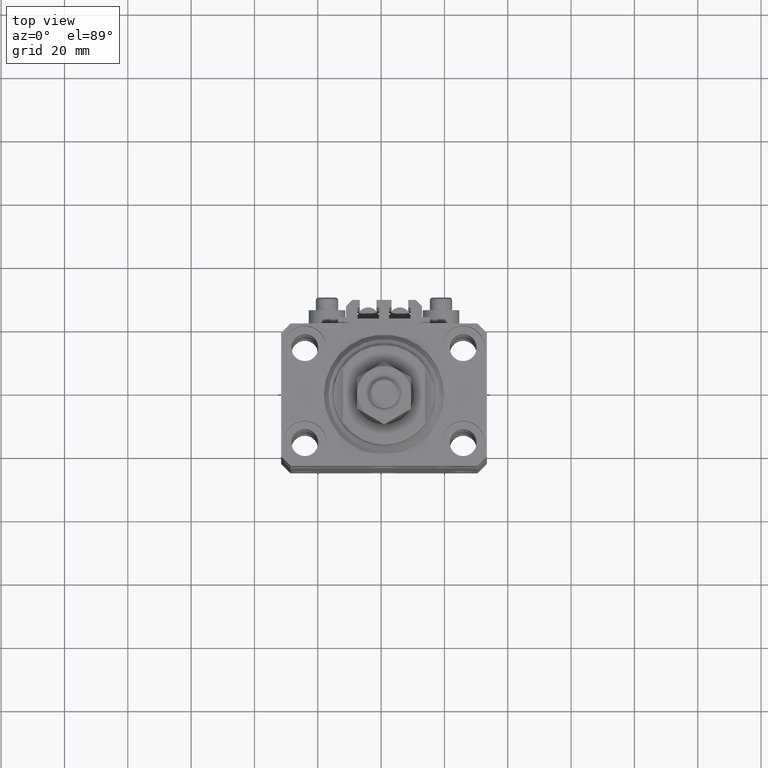
[diagram: clean part render]
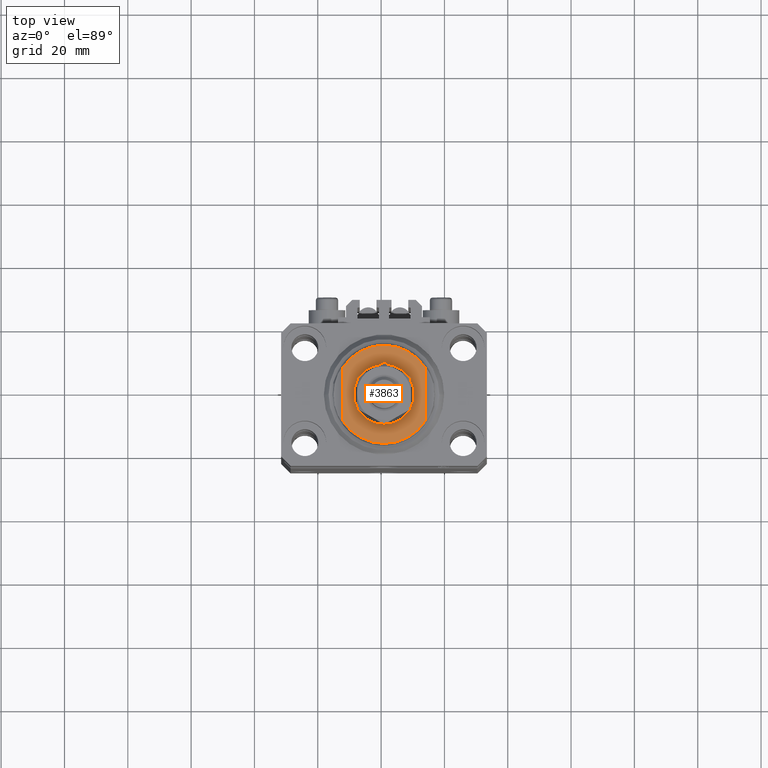
[diagram: same view with one face highlighted and labeled with its STEP entity id]
A machine part, top view. The second image highlights one B-rep face of the part: STEP entity #3863.
In plain terms, the highlighted planar face has unit normal (0, 0, 1).
Its self-contained STEP definition (entity closure, byte-faithful):
#1877 = EDGE_CURVE ( 'NONE', #36268, #11221, #43500, .T. ) ;
#2905 = CARTESIAN_POINT ( 'NONE',  ( 13.00000000000000000, -8.440971508067139695, -6.500000000000000000 ) ) ;
#3295 = DIRECTION ( 'NONE',  ( -0.000000000000000000, -1.000000000000000000, -0.000000000000000000 ) ) ;
#3733 = ORIENTED_EDGE ( 'NONE', *, *, #1877, .T. ) ;
#3863 = ADVANCED_FACE ( 'NONE', ( #9588, #25217 ), #40850, .T. ) ;
#4945 = ORIENTED_EDGE ( 'NONE', *, *, #44510, .T. ) ;
#5390 = EDGE_CURVE ( 'NONE', #30067, #33876, #36968, .T. ) ;
#5768 = CARTESIAN_POINT ( 'NONE',  ( 0.000000000000000000, 0.000000000000000000, -6.500000000000000000 ) ) ;
#5848 = DIRECTION ( 'NONE',  ( -0.000000000000000000, -0.000000000000000000, 1.000000000000000000 ) ) ;
#8107 = ORIENTED_EDGE ( 'NONE', *, *, #41847, .T. ) ;
#8336 = ORIENTED_EDGE ( 'NONE', *, *, #22093, .T. ) ;
#8950 = DIRECTION ( 'NONE',  ( 0.000000000000000000, 0.000000000000000000, -1.000000000000000000 ) ) ;
#9096 = CARTESIAN_POINT ( 'NONE',  ( -13.00000000000000000, 8.440971508067139695, -6.500000000000000000 ) ) ;
#9135 = DIRECTION ( 'NONE',  ( -0.000000000000000000, -0.000000000000000000, 1.000000000000000000 ) ) ;
#9588 = FACE_BOUND ( 'NONE', #27005, .T. ) ;
#11221 = VERTEX_POINT ( 'NONE', #29286 ) ;
#12923 = DIRECTION ( 'NONE',  ( 0.000000000000000000, 0.000000000000000000, -1.000000000000000000 ) ) ;
#13446 = ORIENTED_EDGE ( 'NONE', *, *, #5390, .T. ) ;
#14881 = AXIS2_PLACEMENT_3D ( 'NONE', #25300, #5848, #41447 ) ;
#15030 = EDGE_LOOP ( 'NONE', ( #8107, #8336, #3733, #28009 ) ) ;
#16170 = CIRCLE ( 'NONE', #21111, 9.500000000000015987 ) ;
#16649 = CARTESIAN_POINT ( 'NONE',  ( 0.000000000000000000, 0.000000000000000000, -6.500000000000000000 ) ) ;
#16940 = CARTESIAN_POINT ( 'NONE',  ( 13.00000000000000000, -43.08131845707602992, -6.500000000000000000 ) ) ;
#17112 = CIRCLE ( 'NONE', #35096, 15.50000000000003730 ) ;
#17457 = VECTOR ( 'NONE', #3295, 1000.000000000000000 ) ;
#20756 = DIRECTION ( 'NONE',  ( -1.000000000000000000, 0.000000000000000000, 0.000000000000000000 ) ) ;
#21111 = AXIS2_PLACEMENT_3D ( 'NONE', #28606, #9135, #24764 ) ;
#21374 = DIRECTION ( 'NONE',  ( -1.000000000000000000, 0.000000000000000000, -0.000000000000000000 ) ) ;
#21435 = AXIS2_PLACEMENT_3D ( 'NONE', #16649, #27908, #23566 ) ;
#21787 = EDGE_CURVE ( 'NONE', #49691, #11221, #46038, .T. ) ;
#22093 = EDGE_CURVE ( 'NONE', #47223, #36268, #44079, .T. ) ;
#23566 = DIRECTION ( 'NONE',  ( -1.000000000000000000, 0.000000000000000000, 0.000000000000000000 ) ) ;
#24764 = DIRECTION ( 'NONE',  ( -1.000000000000000000, 0.000000000000000000, 0.000000000000000000 ) ) ;
#25217 = FACE_OUTER_BOUND ( 'NONE', #15030, .T. ) ;
#25300 = CARTESIAN_POINT ( 'NONE',  ( 0.000000000000000000, 0.000000000000000000, -6.500000000000000000 ) ) ;
#25374 = DIRECTION ( 'NONE',  ( 0.000000000000000000, -1.000000000000000000, -0.000000000000000000 ) ) ;
#26575 = CARTESIAN_POINT ( 'NONE',  ( -13.00000000000000000, -43.08131845707602992, -6.500000000000000000 ) ) ;
#27005 = EDGE_LOOP ( 'NONE', ( #4945, #13446 ) ) ;
#27908 = DIRECTION ( 'NONE',  ( 0.000000000000000000, 0.000000000000000000, -1.000000000000000000 ) ) ;
#28009 = ORIENTED_EDGE ( 'NONE', *, *, #21787, .F. ) ;
#28167 = CARTESIAN_POINT ( 'NONE',  ( 0.000000000000000000, 0.000000000000000000, -6.500000000000000000 ) ) ;
#28606 = CARTESIAN_POINT ( 'NONE',  ( 0.000000000000000000, 0.000000000000000000, -6.500000000000000000 ) ) ;
#29286 = CARTESIAN_POINT ( 'NONE',  ( -13.00000000000000000, -8.440971508067139695, -6.500000000000000000 ) ) ;
#30067 = VERTEX_POINT ( 'NONE', #48475 ) ;
#33876 = VERTEX_POINT ( 'NONE', #47640 ) ;
#34826 = CARTESIAN_POINT ( 'NONE',  ( 13.00000000000000000, 8.440971508067139695, -6.500000000000000000 ) ) ;
#35096 = AXIS2_PLACEMENT_3D ( 'NONE', #28167, #8950, #20756 ) ;
#35288 = AXIS2_PLACEMENT_3D ( 'NONE', #5768, #12923, #21374 ) ;
#36268 = VERTEX_POINT ( 'NONE', #2905 ) ;
#36968 = CIRCLE ( 'NONE', #14881, 9.500000000000015987 ) ;
#40850 = PLANE ( 'NONE',  #35288 ) ;
#41447 = DIRECTION ( 'NONE',  ( -1.000000000000000000, 0.000000000000000000, 0.000000000000000000 ) ) ;
#41847 = EDGE_CURVE ( 'NONE', #49691, #47223, #17112, .T. ) ;
#43500 = CIRCLE ( 'NONE', #21435, 15.50000000000003730 ) ;
#44079 = LINE ( 'NONE', #16940, #47720 ) ;
#44510 = EDGE_CURVE ( 'NONE', #33876, #30067, #16170, .T. ) ;
#46038 = LINE ( 'NONE', #26575, #17457 ) ;
#47223 = VERTEX_POINT ( 'NONE', #34826 ) ;
#47640 = CARTESIAN_POINT ( 'NONE',  ( -9.500000000000015987, 0.000000000000000000, -6.500000000000000000 ) ) ;
#47720 = VECTOR ( 'NONE', #25374, 1000.000000000000000 ) ;
#48475 = CARTESIAN_POINT ( 'NONE',  ( 9.500000000000015987, 1.163414459189987457E-15, -6.500000000000000000 ) ) ;
#49691 = VERTEX_POINT ( 'NONE', #9096 ) ;